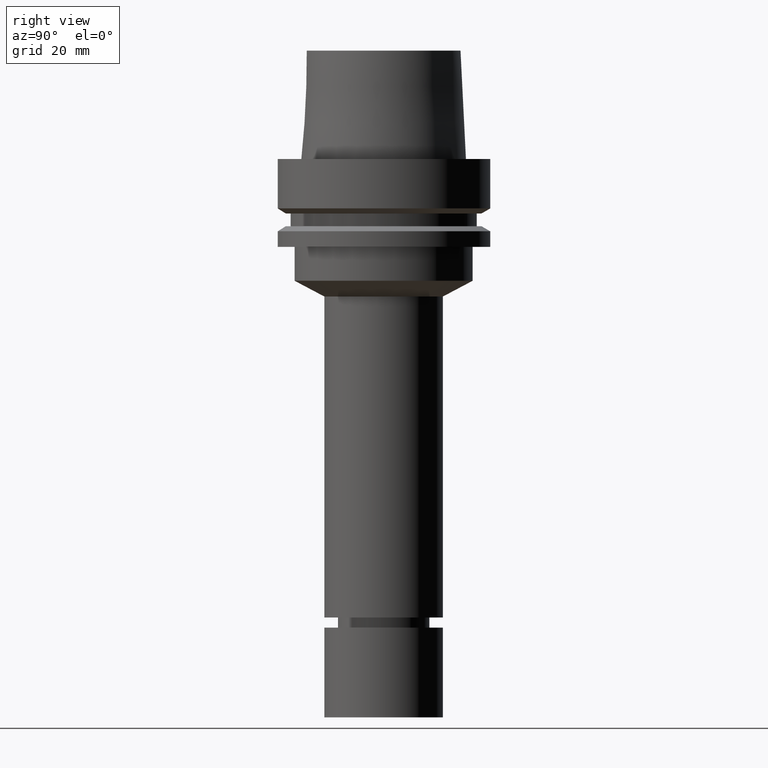
[diagram: clean part render]
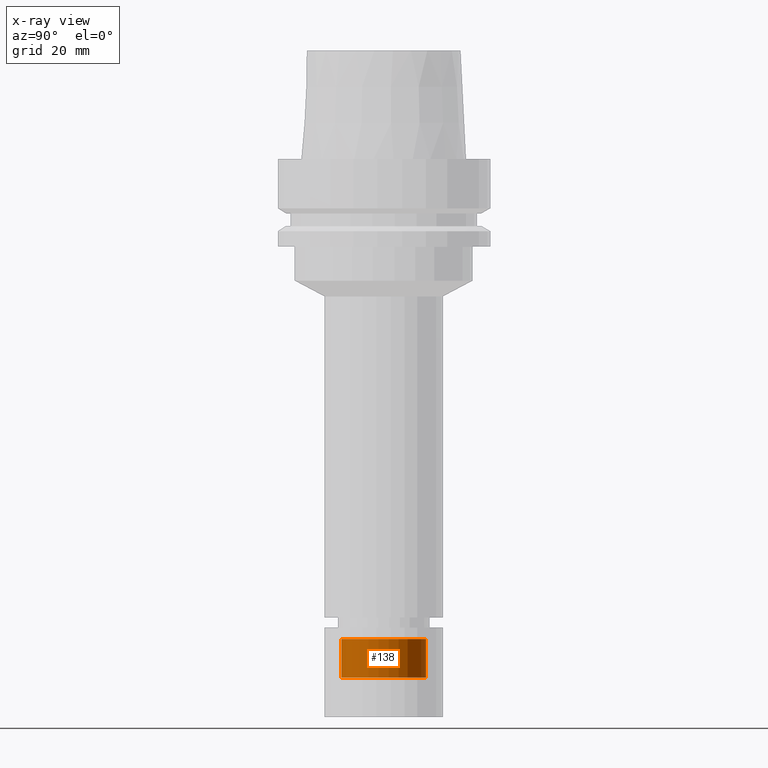
[diagram: x-ray — body ghosted, one internal face saturated and labeled with its STEP entity id]
A machine part, right view, then the same camera in x-ray: the body is ghosted and one INTERNAL B-rep face — a face not visible from any outside direction — is saturated and labeled: STEP entity #138.
In plain terms, the highlighted cylindrical surface (bore or boss wall) has radius 12.5 mm, axis along (-0, -0, 1).
Its self-contained STEP definition (entity closure, byte-faithful):
#138=ADVANCED_FACE('Unnamed[1]',(#305,#306),#307,.T.);
#140=EDGE_CURVE('Unnamed[1]',#309,#309,#310,.T.);
#173=EDGE_CURVE('Unnamed[1]',#362,#362,#363,.T.);
#305=FACE_BOUND('',#519,.T.);
#306=FACE_BOUND('',#520,.T.);
#307=CYLINDRICAL_SURFACE('',#521,12.4999999999999);
#309=VERTEX_POINT('',#524);
#310=CIRCLE('',#525,12.4999999999998);
#362=VERTEX_POINT('',#590);
#363=CIRCLE('',#591,12.4999999999999);
#519=EDGE_LOOP('',(#729));
#520=EDGE_LOOP('',(#730));
#521=AXIS2_PLACEMENT_3D('',#731,#732,#733);
#524=CARTESIAN_POINT('',(9.38659588512362E-015,12.4999999999998,-153.294744111673));
#525=AXIS2_PLACEMENT_3D('',#734,#735,#736);
#590=CARTESIAN_POINT('',(8.68884914768171E-015,12.4999999999999,-141.899675134598));
#591=AXIS2_PLACEMENT_3D('',#794,#795,#796);
#729=ORIENTED_EDGE('',*,*,#173,.F.);
#730=ORIENTED_EDGE('',*,*,#140,.T.);
#731=CARTESIAN_POINT('',(9.03772251640266E-015,1.80754450328053E-014,-147.597209623135));
#732=DIRECTION('',(-6.12323399573677E-017,-1.22464679914735E-016,1.0));
#733=DIRECTION('',(-1.23259516440783E-032,1.0,1.22464679914735E-016));
#734=CARTESIAN_POINT('',(9.38659588512362E-015,1.87731917702472E-014,-153.294744111673));
#735=DIRECTION('',(-6.12323399573677E-017,-1.22464679914735E-016,1.0));
#736=DIRECTION('',(-1.23259516440783E-032,1.0,1.22464679914735E-016));
#794=CARTESIAN_POINT('',(8.68884914768171E-015,1.73776982953634E-014,-141.899675134598));
#795=DIRECTION('',(-6.12323399573677E-017,-1.22464679914735E-016,1.0));
#796=DIRECTION('',(-1.23259516440783E-032,1.0,1.22464679914735E-016));